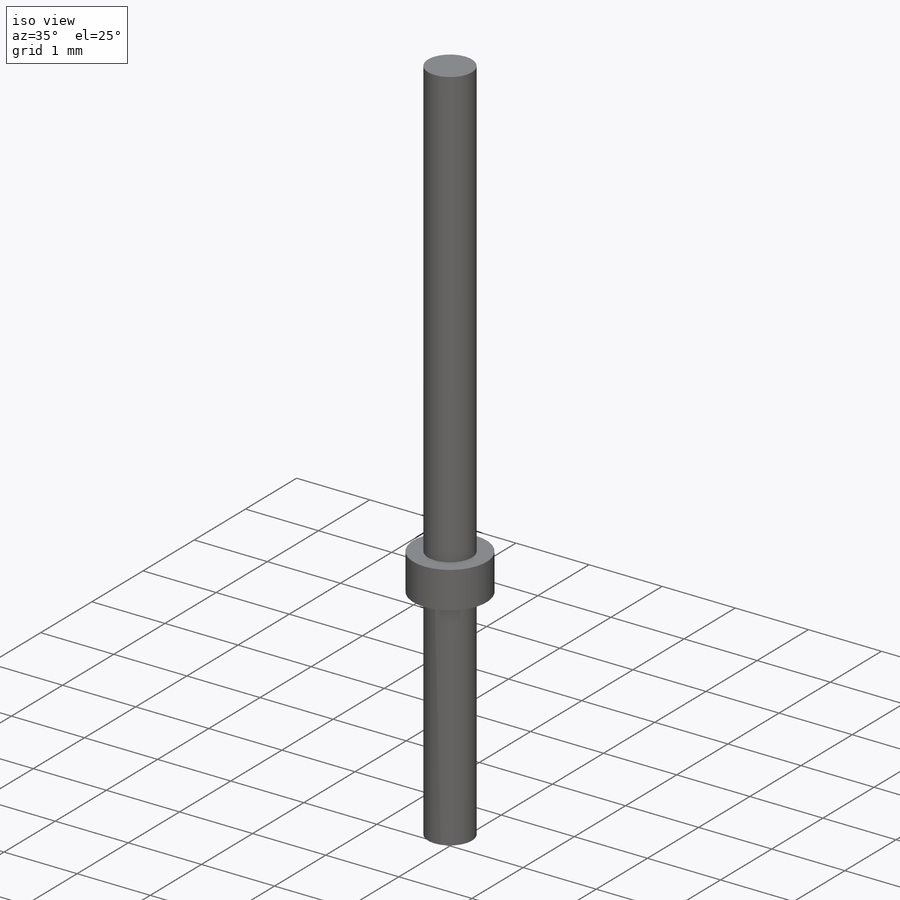
[diagram: iso view]
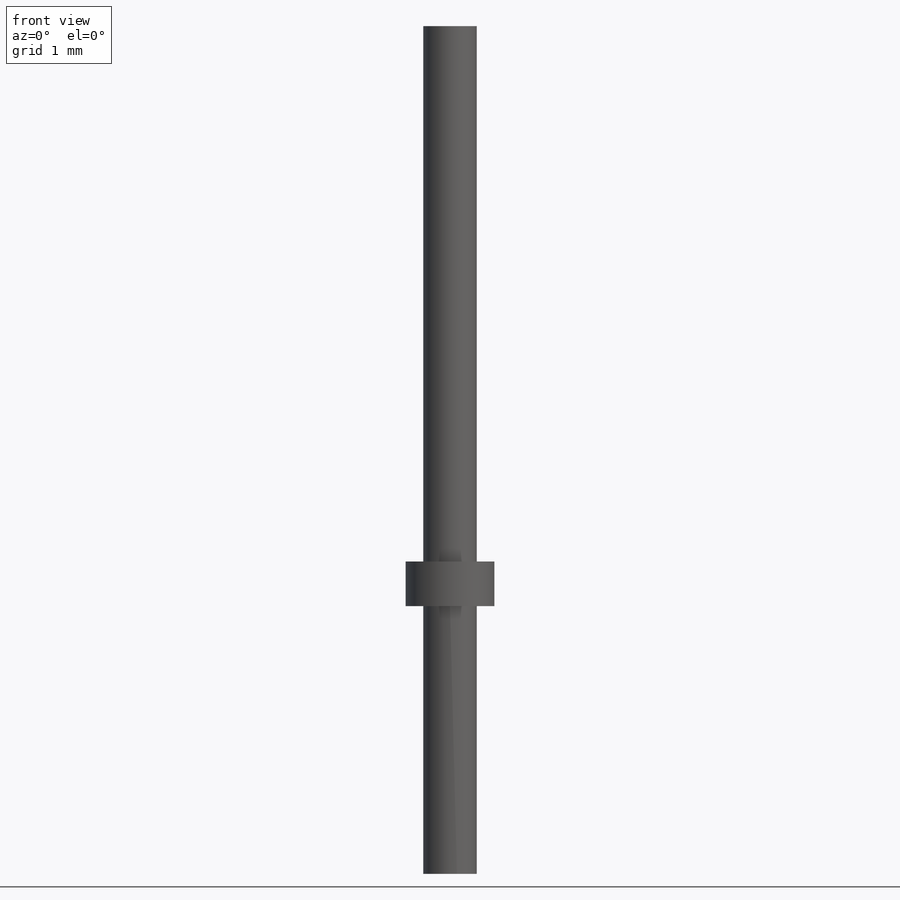
[diagram: front view]
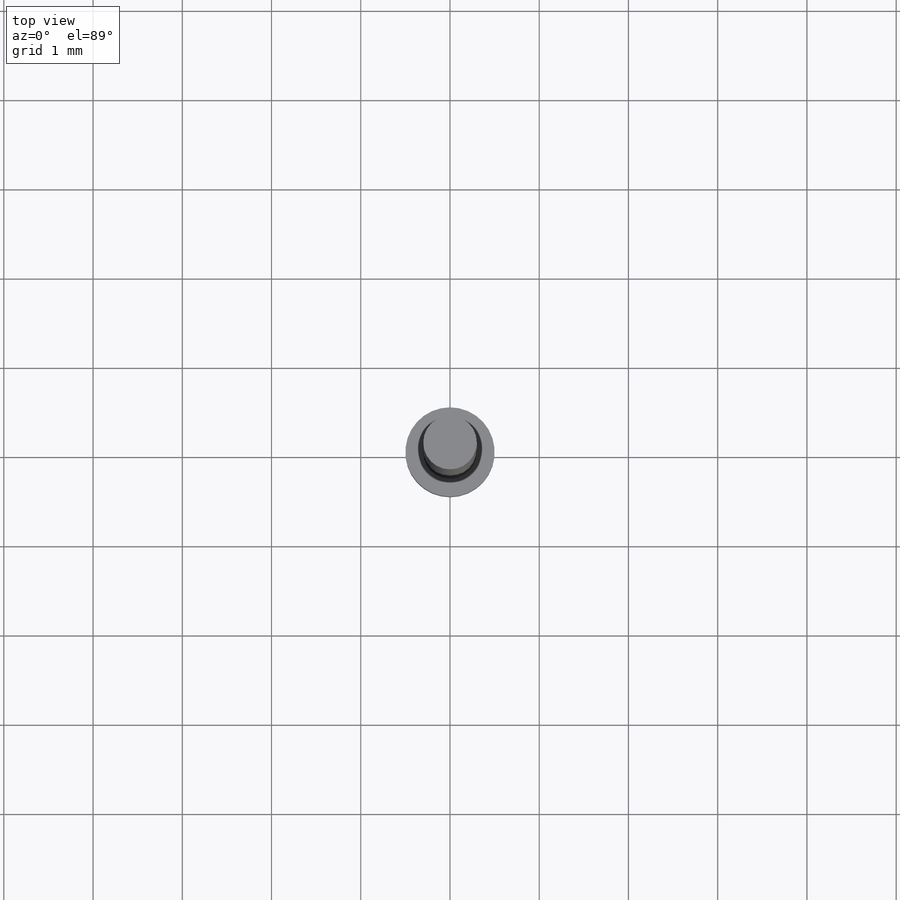
[diagram: top view]
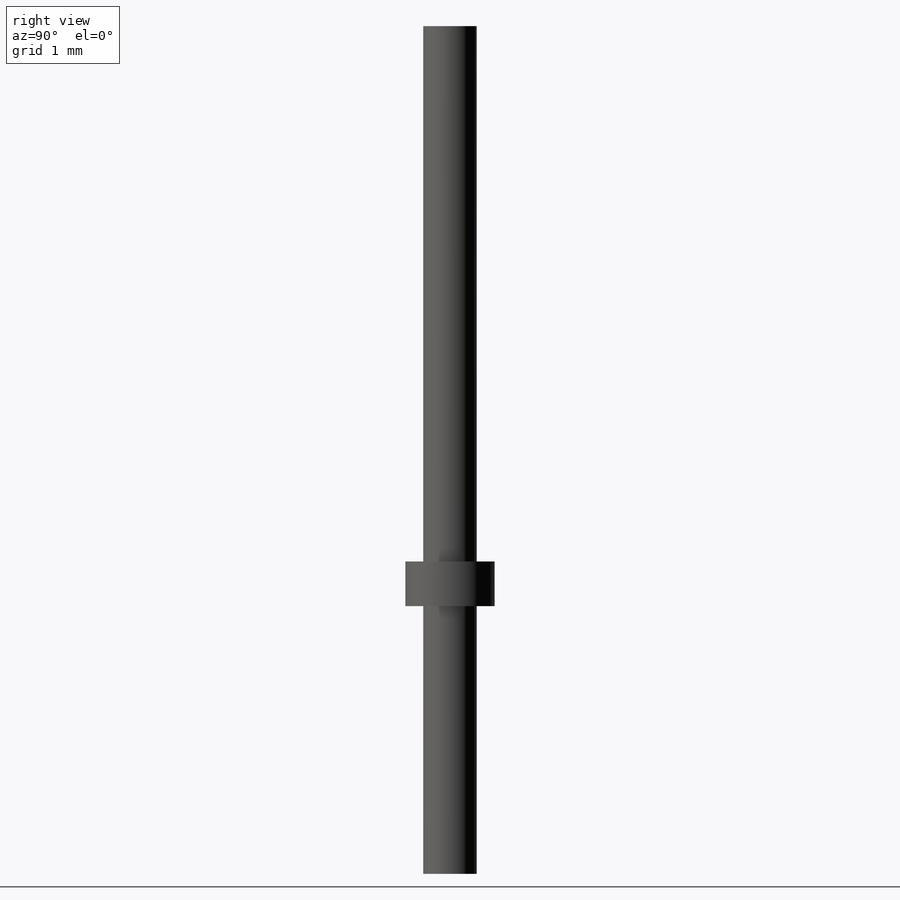
[diagram: right view]
SOLIDWORKS PART (.sldprt)
format: sldprt  version: not decoded by parser v0  size: 230,912 bytes
history: native  units: mm
features: sketch x4, extrude x3, material x1, plane x1 (+12 scaffold rows collapsed)
feature tree (21):
  scaffold x12  (default folders/planes/origin — collapsed)
  material  "Material <not specified>"
  sketch  "Sketch2"  dims[D1=0.6mm]
  extrude  "Base-Extrude"  Depth=6.5mm
  sketch  "Sketch3"  dims[D1=1.0mm]
  extrude  "Boss-Extrude1"  Depth=0.5mm
  sketch  "Sketch4"
  extrude  "Boss-Extrude2"  Depth=3mm
  plane  "Board Plane"  Offset=3mm
  sketch  "Component_Outline"
decode coverage: 5 of 7 modeling features carry decoded parameters
note: suppression state not decoded; provenance and decode notes live in map.json
